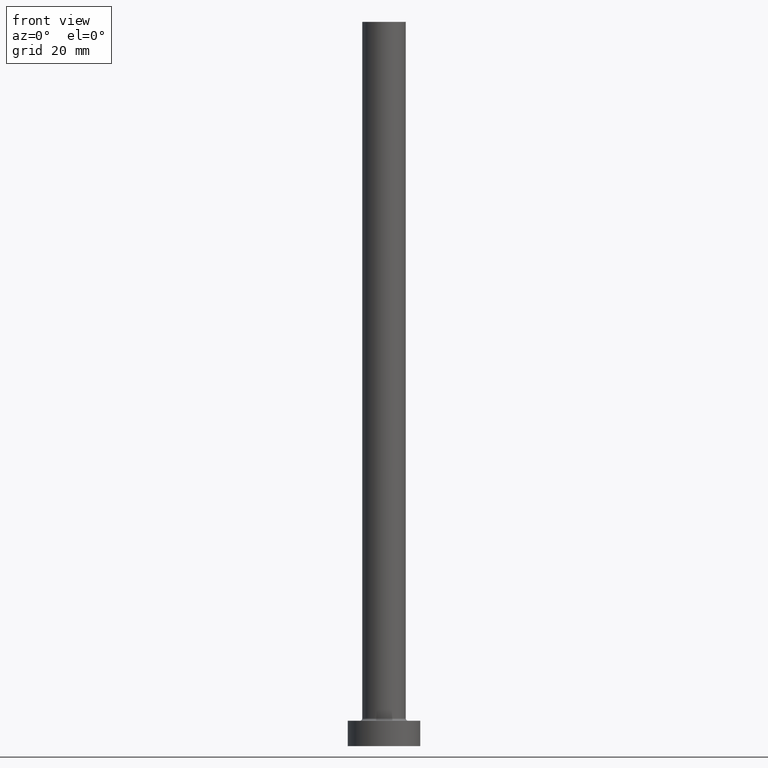
[diagram: clean part render]
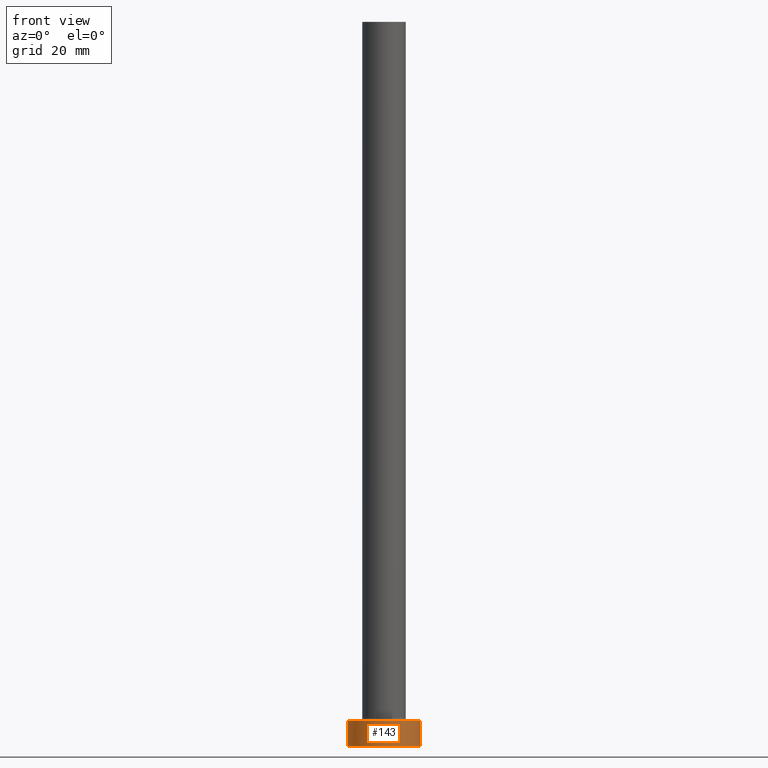
[diagram: same view with one face highlighted and labeled with its STEP entity id]
A machine part, front view. The second image highlights one B-rep face of the part: STEP entity #143.
In plain terms, the highlighted cylindrical surface (edge-blend (fillet) strip) has radius 10 mm, axis along (-0, -0, -1).
Its self-contained STEP definition (entity closure, byte-faithful):
#50 = CARTESIAN_POINT ( 'NONE',  ( 0.000000000000000000, 0.000000000000000000, 7.000000000000000000 ) ) ;
#55 = EDGE_CURVE ( 'NONE', #308, #444, #454, .T. ) ;
#64 = EDGE_CURVE ( 'NONE', #308, #373, #263, .T. ) ;
#65 = CARTESIAN_POINT ( 'NONE',  ( 10.00000000000000000, 1.224646799147353256E-15, 0.000000000000000000 ) ) ;
#69 = CARTESIAN_POINT ( 'NONE',  ( -10.00000000000000000, 0.000000000000000000, 0.000000000000000000 ) ) ;
#90 = CARTESIAN_POINT ( 'NONE',  ( -10.00000000000000000, 0.000000000000000000, 7.000000000000000000 ) ) ;
#114 = VERTEX_POINT ( 'NONE', #65 ) ;
#121 = DIRECTION ( 'NONE',  ( -0.000000000000000000, -0.000000000000000000, -1.000000000000000000 ) ) ;
#122 = EDGE_CURVE ( 'NONE', #444, #114, #400, .T. ) ;
#143 = ADVANCED_FACE ( 'NONE', ( #146 ), #355, .T. ) ;
#144 = AXIS2_PLACEMENT_3D ( 'NONE', #320, #212, #318 ) ;
#146 = FACE_OUTER_BOUND ( 'NONE', #448, .T. ) ;
#177 = DIRECTION ( 'NONE',  ( 0.000000000000000000, 0.000000000000000000, 1.000000000000000000 ) ) ;
#188 = ORIENTED_EDGE ( 'NONE', *, *, #64, .T. ) ;
#212 = DIRECTION ( 'NONE',  ( -0.000000000000000000, -0.000000000000000000, -1.000000000000000000 ) ) ;
#237 = VECTOR ( 'NONE', #121, 1000.000000000000000 ) ;
#257 = CARTESIAN_POINT ( 'NONE',  ( 10.00000000000000000, 1.224646799147353256E-15, 7.000000000000000000 ) ) ;
#263 = LINE ( 'NONE', #90, #237 ) ;
#266 = DIRECTION ( 'NONE',  ( 1.000000000000000000, 0.000000000000000000, 0.000000000000000000 ) ) ;
#277 = AXIS2_PLACEMENT_3D ( 'NONE', #289, #177, #322 ) ;
#282 = EDGE_CURVE ( 'NONE', #373, #114, #379, .T. ) ;
#283 = ORIENTED_EDGE ( 'NONE', *, *, #122, .F. ) ;
#289 = CARTESIAN_POINT ( 'NONE',  ( 0.000000000000000000, 0.000000000000000000, 0.000000000000000000 ) ) ;
#298 = VECTOR ( 'NONE', #316, 1000.000000000000000 ) ;
#302 = AXIS2_PLACEMENT_3D ( 'NONE', #50, #449, #266 ) ;
#308 = VERTEX_POINT ( 'NONE', #451 ) ;
#316 = DIRECTION ( 'NONE',  ( -0.000000000000000000, -0.000000000000000000, -1.000000000000000000 ) ) ;
#318 = DIRECTION ( 'NONE',  ( -1.000000000000000000, 0.000000000000000000, 0.000000000000000000 ) ) ;
#320 = CARTESIAN_POINT ( 'NONE',  ( 0.000000000000000000, 0.000000000000000000, 7.000000000000000000 ) ) ;
#322 = DIRECTION ( 'NONE',  ( 1.000000000000000000, 0.000000000000000000, 0.000000000000000000 ) ) ;
#355 = CYLINDRICAL_SURFACE ( 'NONE', #144, 10.00000000000000000 ) ;
#373 = VERTEX_POINT ( 'NONE', #69 ) ;
#379 = CIRCLE ( 'NONE', #277, 10.00000000000000000 ) ;
#400 = LINE ( 'NONE', #403, #298 ) ;
#403 = CARTESIAN_POINT ( 'NONE',  ( 10.00000000000000000, 1.224646799147353256E-15, 7.000000000000000000 ) ) ;
#415 = ORIENTED_EDGE ( 'NONE', *, *, #55, .F. ) ;
#433 = ORIENTED_EDGE ( 'NONE', *, *, #282, .T. ) ;
#444 = VERTEX_POINT ( 'NONE', #257 ) ;
#448 = EDGE_LOOP ( 'NONE', ( #283, #415, #188, #433 ) ) ;
#449 = DIRECTION ( 'NONE',  ( 0.000000000000000000, 0.000000000000000000, 1.000000000000000000 ) ) ;
#451 = CARTESIAN_POINT ( 'NONE',  ( -10.00000000000000000, 0.000000000000000000, 7.000000000000000000 ) ) ;
#454 = CIRCLE ( 'NONE', #302, 10.00000000000000000 ) ;